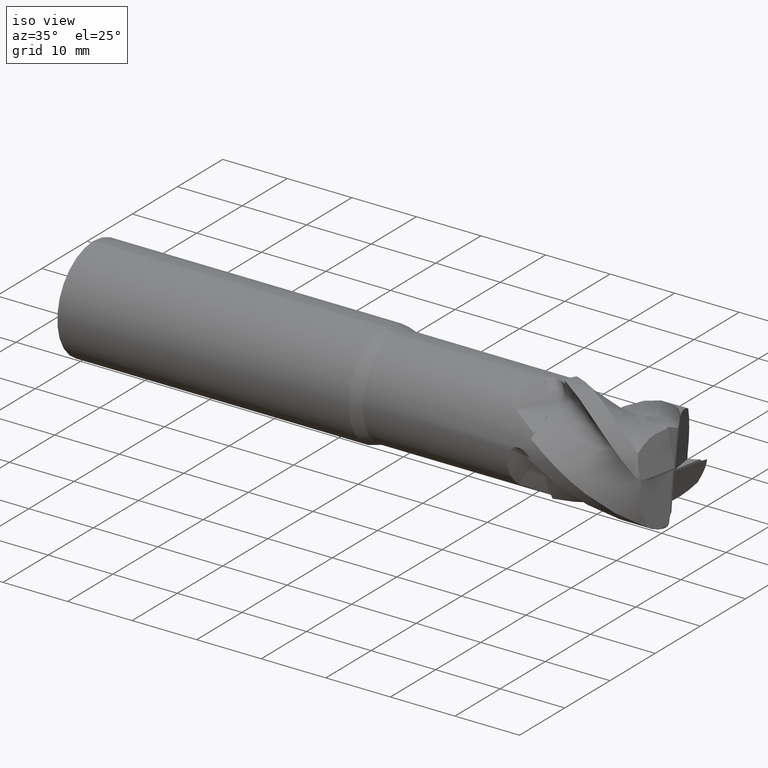
[diagram: clean part render]
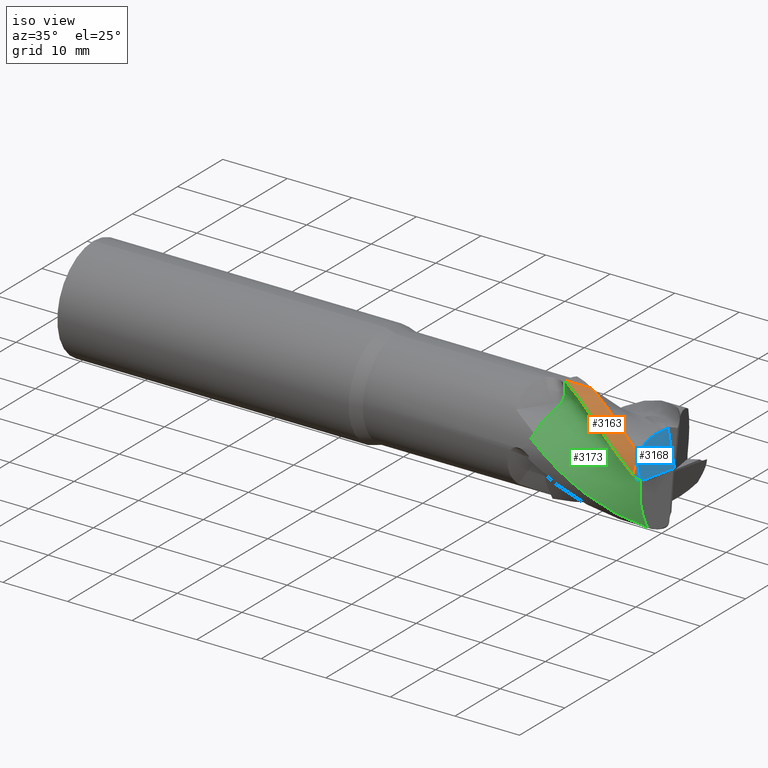
[diagram: same view with three faces highlighted in distinct colors, each labeled with its STEP entity id]
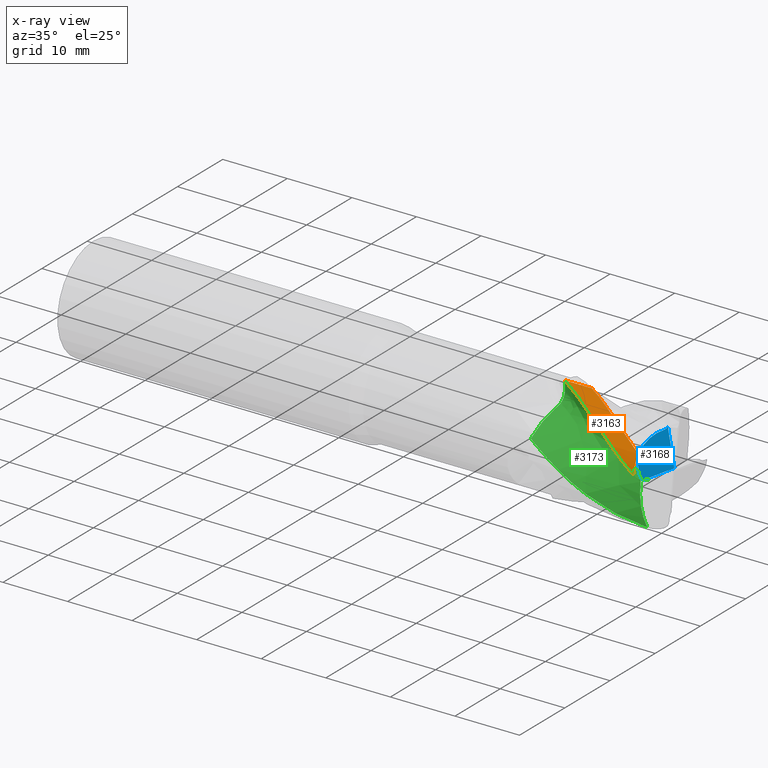
[diagram: x-ray of the same camera — body ghosted, the three highlighted faces saturated]
A machine part, iso view with three faces highlighted in distinct colors.
The next image is the same camera in x-ray (body ghosted, the three faces saturated) — at least one of them is partly hidden behind the body in this view.
Their STEP definitions:

[orange] entity #3163 — the highlighted cylindrical surface (partial cylindrical patch) has radius 8 mm, axis along (-1, -0, -0).
#81 =( BOUNDED_CURVE ( )  B_SPLINE_CURVE ( 3, ( #2317, #2238, #2237, #2236 ),
 .UNSPECIFIED., .F., .T. ) 
 B_SPLINE_CURVE_WITH_KNOTS ( ( 4, 4 ),
 ( 1.138046724006879500, 1.157835611299588500 ),
 .UNSPECIFIED. ) 
 CURVE ( )  GEOMETRIC_REPRESENTATION_ITEM ( )  RATIONAL_B_SPLINE_CURVE ( ( 1.000000000000000000, 0.9999673669278756900, 0.9999673669278756900, 1.000000000000000000 ) ) 
 REPRESENTATION_ITEM ( '' )  );
#114 = CYLINDRICAL_SURFACE ( 'NONE', #1915, 8.000000000000017800 ) ;
#116 = FACE_OUTER_BOUND ( 'NONE', #5304, .T. ) ;
#396 = CARTESIAN_POINT ( 'NONE',  ( 29.18537270988267800, 2.344587197999903300E-014, 8.000000000000017800 ) ) ;
#491 = B_SPLINE_CURVE_WITH_KNOTS ( 'NONE', 3,
 ( #1212, #1234, #1235, #1236, #1237, #1238, #1239, #1240, #1241, #1242, #1243, #1244, #1245, #1246, #1247, #1248, #1249, #1250, #1251, #1252 ),
 .UNSPECIFIED., .F., .F.,
 ( 4, 2, 2, 2, 2, 2, 2, 2, 2, 4 ),
 ( 5.357508021462218400E-005, 0.001809958910828489200, 0.003566342741442356000, 0.005322726572056223400, 0.006200918487363165200, 0.007079110402670107800, 0.008835494233283973000, 0.01059187806389784100, 0.01234826189451170700, 0.01410464572512557700 ),
 .UNSPECIFIED. ) ;
#493 = B_SPLINE_CURVE_WITH_KNOTS ( 'NONE', 3,
 ( #1253, #1264, #1265, #1266, #1267, #1268, #1269, #1270, #1271, #1272, #1273, #1274, #1275, #1276 ),
 .UNSPECIFIED., .F., .F.,
 ( 4, 2, 2, 2, 2, 2, 4 ),
 ( 0.0000000000000000000, 0.004771799707058647100, 0.007157699560587970100, 0.009543599414117302800, 0.01431539912117598400, 0.01670129897470531300, 0.01908719882823464700 ),
 .UNSPECIFIED. ) ;
#720 = VECTOR ( 'NONE', #2201, 1000.000000000000000 ) ;
#754 = CIRCLE ( 'NONE', #1787, 8.000000000000017800 ) ;
#756 = LINE ( 'NONE', #2202, #720 ) ;
#804 = VERTEX_POINT ( 'NONE', #870 ) ;
#820 = VERTEX_POINT ( 'NONE', #866 ) ;
#821 = VERTEX_POINT ( 'NONE', #865 ) ;
#823 = VERTEX_POINT ( 'NONE', #863 ) ;
#863 = CARTESIAN_POINT ( 'NONE',  ( 40.99999999999999300, -7.745826522737519100, 2.000542796257128900 ) ) ;
#865 = CARTESIAN_POINT ( 'NONE',  ( 40.99999999999999300, -6.677091160638437600, 4.406410515660604200 ) ) ;
#866 = CARTESIAN_POINT ( 'NONE',  ( 24.99999999999999600, -5.384444748270631800E-014, 8.000000000000016000 ) ) ;
#870 = CARTESIAN_POINT ( 'NONE',  ( 40.95458504109765800, -6.588591558601290600, 4.537671349263713500 ) ) ;
#971 = VERTEX_POINT ( 'NONE', #396 ) ;
#1172 = CARTESIAN_POINT ( 'NONE',  ( 40.99999999999999300, 0.0000000000000000000, 0.0000000000000000000 ) ) ;
#1174 = DIRECTION ( 'NONE',  ( -1.000000000000000000, -0.0000000000000000000, -0.0000000000000000000 ) ) ;
#1175 = DIRECTION ( 'NONE',  ( 0.0000000000000000000, 0.0000000000000000000, 1.000000000000000000 ) ) ;
#1212 = CARTESIAN_POINT ( 'NONE',  ( 40.95458504109765800, -6.588591558601290600, 4.537671349263713500 ) ) ;
#1234 = CARTESIAN_POINT ( 'NONE',  ( 40.45828299641514300, -6.405476082166845900, 4.803550693408073600 ) ) ;
#1235 = CARTESIAN_POINT ( 'NONE',  ( 39.96029640156641000, -6.211333079223510200, 5.052071167037992100 ) ) ;
#1236 = CARTESIAN_POINT ( 'NONE',  ( 38.97812623585831200, -5.784353824557311600, 5.535822660653246400 ) ) ;
#1237 = CARTESIAN_POINT ( 'NONE',  ( 38.49141873886646400, -5.553621395448155700, 5.767492480126787100 ) ) ;
#1238 = CARTESIAN_POINT ( 'NONE',  ( 37.51922264393903800, -5.064978030777936600, 6.201022307655035700 ) ) ;
#1239 = CARTESIAN_POINT ( 'NONE',  ( 37.03369795498403500, -4.807101273905596300, 6.402836327160737400 ) ) ;
#1240 = CARTESIAN_POINT ( 'NONE',  ( 36.30027075180688500, -4.407820084824361800, 6.678117700543894300 ) ) ;
#1241 = CARTESIAN_POINT ( 'NONE',  ( 36.05493818023531100, -4.272670415029439900, 6.765330733325503900 ) ) ;
#1242 = CARTESIAN_POINT ( 'NONE',  ( 35.56160492692750100, -3.999765790144869500, 6.930172150151338300 ) ) ;
#1243 = CARTESIAN_POINT ( 'NONE',  ( 35.31323277830738800, -3.862568927332655100, 7.007575828523768800 ) ) ;
#1244 = CARTESIAN_POINT ( 'NONE',  ( 34.57080866319534400, -3.438003918877306400, 7.230654181842656000 ) ) ;
#1245 = CARTESIAN_POINT ( 'NONE',  ( 34.07543872389867800, -3.139559782571373700, 7.365442483917491700 ) ) ;
#1246 = CARTESIAN_POINT ( 'NONE',  ( 33.09313789021334200, -2.528982427132340200, 7.596764212182193900 ) ) ;
#1247 = CARTESIAN_POINT ( 'NONE',  ( 32.60537362341768400, -2.216541003358921900, 7.693613885853031000 ) ) ;
#1248 = CARTESIAN_POINT ( 'NONE',  ( 31.62969223439504400, -1.587806918474680800, 7.847523038118835000 ) ) ;
#1249 = CARTESIAN_POINT ( 'NONE',  ( 31.14174437701741700, -1.271561634191678200, 7.904582425817103800 ) ) ;
#1250 = CARTESIAN_POINT ( 'NONE',  ( 30.15885485324572500, -0.6458898353831829000, 7.980107683273049100 ) ) ;
#1251 = CARTESIAN_POINT ( 'NONE',  ( 29.67145653512376300, -0.3249798156829383800, 8.000000000000019500 ) ) ;
#1252 = CARTESIAN_POINT ( 'NONE',  ( 29.18537270988267800, 2.344587197999903300E-014, 8.000000000000017800 ) ) ;
#1253 = CARTESIAN_POINT ( 'NONE',  ( 24.99999999999999600, -5.384444748270631800E-014, 8.000000000000016000 ) ) ;
#1264 = CARTESIAN_POINT ( 'NONE',  ( 26.34379014982030000, -0.8855962627879695500, 8.000000000000016000 ) ) ;
#1265 = CARTESIAN_POINT ( 'NONE',  ( 27.66898196080640600, -1.758816956987812000, 7.853224666014974700 ) ) ;
#1266 = CARTESIAN_POINT ( 'NONE',  ( 29.66201325733079500, -3.001550431632826300, 7.428481587251758900 ) ) ;
#1267 = CARTESIAN_POINT ( 'NONE',  ( 30.32720734910118000, -3.404638826595658000, 7.252765827094352200 ) ) ;
#1268 = CARTESIAN_POINT ( 'NONE',  ( 31.66456511648695800, -4.180618592958878400, 6.834954708148174500 ) ) ;
#1269 = CARTESIAN_POINT ( 'NONE',  ( 32.33780543952636300, -4.553828963209382700, 6.592095557604603900 ) ) ;
#1270 = CARTESIAN_POINT ( 'NONE',  ( 34.33784855928656300, -5.595710114879802100, 5.784492767499225300 ) ) ;
#1271 = CARTESIAN_POINT ( 'NONE',  ( 35.65775827175506400, -6.194429172402951900, 5.137581406851557700 ) ) ;
#1272 = CARTESIAN_POINT ( 'NONE',  ( 37.64917986813893700, -6.917536023776276200, 4.042167640108902800 ) ) ;
#1273 = CARTESIAN_POINT ( 'NONE',  ( 38.31493670163688100, -7.129344742717846900, 3.656180945674448100 ) ) ;
#1274 = CARTESIAN_POINT ( 'NONE',  ( 39.65595818606878700, -7.488610910635895100, 2.848845765768399700 ) ) ;
#1275 = CARTESIAN_POINT ( 'NONE',  ( 40.32811515339459900, -7.635093839465055200, 2.429284514070172200 ) ) ;
#1276 = CARTESIAN_POINT ( 'NONE',  ( 40.99999999999999300, -7.745826522737519100, 2.000542796257128900 ) ) ;
#1530 = DIRECTION ( 'NONE',  ( 0.0000000000000000000, 0.0000000000000000000, 1.000000000000000000 ) ) ;
#1531 = DIRECTION ( 'NONE',  ( -1.000000000000000000, -0.0000000000000000000, -0.0000000000000000000 ) ) ;
#1532 = CARTESIAN_POINT ( 'NONE',  ( -39.76065438357068200, 0.0000000000000000000, 0.0000000000000000000 ) ) ;
#1787 = AXIS2_PLACEMENT_3D ( 'NONE', #1172, #1174, #1175 ) ;
#1809 = EDGE_CURVE ( 'NONE', #804, #821, #81, .T. ) ;
#1815 = EDGE_CURVE ( 'NONE', #971, #820, #756, .T. ) ;
#1899 = EDGE_CURVE ( 'NONE', #823, #821, #754, .T. ) ;
#1915 = AXIS2_PLACEMENT_3D ( 'NONE', #1532, #1531, #1530 ) ;
#1920 = EDGE_CURVE ( 'NONE', #804, #971, #491, .T. ) ;
#1922 = EDGE_CURVE ( 'NONE', #820, #823, #493, .T. ) ;
#2004 = ORIENTED_EDGE ( 'NONE', *, *, #1899, .T. ) ;
#2043 = ORIENTED_EDGE ( 'NONE', *, *, #1815, .T. ) ;
#2078 = ORIENTED_EDGE ( 'NONE', *, *, #1809, .F. ) ;
#2079 = ORIENTED_EDGE ( 'NONE', *, *, #1920, .T. ) ;
#2080 = ORIENTED_EDGE ( 'NONE', *, *, #1922, .T. ) ;
#2201 = DIRECTION ( 'NONE',  ( -1.000000000000000000, -0.0000000000000000000, -0.0000000000000000000 ) ) ;
#2202 = CARTESIAN_POINT ( 'NONE',  ( -39.76065438357068200, 0.0000000000000000000, 8.000000000000017800 ) ) ;
#2236 = CARTESIAN_POINT ( 'NONE',  ( 40.99999999999999300, -6.677091160638437600, 4.406410515660604200 ) ) ;
#2237 = CARTESIAN_POINT ( 'NONE',  ( 40.98479452269423700, -6.648024699348343200, 4.450455302468674800 ) ) ;
#2238 = CARTESIAN_POINT ( 'NONE',  ( 40.96965570903413600, -6.618523869299901100, 4.494210341531051300 ) ) ;
#2317 = CARTESIAN_POINT ( 'NONE',  ( 40.95458504109765800, -6.588591558601290600, 4.537671349263713500 ) ) ;
#3163 = ADVANCED_FACE ( 'NONE', ( #116 ), #114, .T. ) ;
#5304 = EDGE_LOOP ( 'NONE', ( #2079, #2043, #2080, #2004, #2078 ) ) ;

[blue] entity #3168 — the highlighted planar face has unit normal (0.9539, 0.0509, 0.2957).
#44 = B_SPLINE_CURVE_WITH_KNOTS ( 'NONE', 3,
 ( #977, #635, #633, #628, #602, #624, #594, #640, #601, #604, #625, #595, #650, #610 ),
 .UNSPECIFIED., .F., .F.,
 ( 4, 2, 2, 2, 2, 2, 4 ),
 ( 0.003240335425446805000, 0.003710400609898095600, 0.004180465794349386100, 0.005120596163251968200, 0.007000856901057131400, 0.008881117638862295500, 0.01076137837666746000 ),
 .UNSPECIFIED. ) ;
#52 = B_SPLINE_CURVE_WITH_KNOTS ( 'NONE', 3,
 ( #2274, #2265, #2264, #2263, #2261, #2260, #2259, #2258, #2257, #2256, #2255, #2254, #2252, #2251 ),
 .UNSPECIFIED., .F., .F.,
 ( 4, 2, 2, 2, 2, 2, 4 ),
 ( 7.118998652927725500E-007, 0.0009051794912638519600, 0.001809647082662411200, 0.002714114674060970300, 0.003166348469760249600, 0.003392465367609886900, 0.003618582265459524100 ),
 .UNSPECIFIED. ) ;
#81 =( BOUNDED_CURVE ( )  B_SPLINE_CURVE ( 3, ( #2317, #2238, #2237, #2236 ),
 .UNSPECIFIED., .F., .T. ) 
 B_SPLINE_CURVE_WITH_KNOTS ( ( 4, 4 ),
 ( 1.138046724006879500, 1.157835611299588500 ),
 .UNSPECIFIED. ) 
 CURVE ( )  GEOMETRIC_REPRESENTATION_ITEM ( )  RATIONAL_B_SPLINE_CURVE ( ( 1.000000000000000000, 0.9999673669278756900, 0.9999673669278756900, 1.000000000000000000 ) ) 
 REPRESENTATION_ITEM ( '' )  );
#148 = FACE_OUTER_BOUND ( 'NONE', #5310, .T. ) ;
#305 = CARTESIAN_POINT ( 'NONE',  ( 42.00000000000052600, -6.893202197395991600, 1.218098298914151800 ) ) ;
#306 = CARTESIAN_POINT ( 'NONE',  ( 41.94083074469926900, 0.03727767853154134000, 0.2166918294281214300 ) ) ;
#311 = DIRECTION ( 'NONE',  ( 0.3000860501352342600, -0.1617266408334576700, -0.9401025774663951400 ) ) ;
#312 = CARTESIAN_POINT ( 'NONE',  ( 31.01100922619370700, 5.927732494077127400, 34.45738171209419700 ) ) ;
#387 = CARTESIAN_POINT ( 'NONE',  ( 40.33825437603707800, 0.9009609209415648800, 5.237205692325485300 ) ) ;
#494 = B_SPLINE_CURVE_WITH_KNOTS ( 'NONE', 3,
 ( #1233, #1254, #1255, #1256, #1257, #1258, #1259, #1260, #1261, #1262 ),
 .UNSPECIFIED., .F., .F.,
 ( 4, 2, 2, 2, 4 ),
 ( 2.293049316057527200E-005, 0.003505383717229703100, 0.005246610329264267400, 0.006117223635281550200, 0.006987836941298832200 ),
 .UNSPECIFIED. ) ;
#519 = B_SPLINE_CURVE_WITH_KNOTS ( 'NONE', 3,
 ( #1056, #1082, #1083, #1084 ),
 .UNSPECIFIED., .F., .F.,
 ( 4, 4 ),
 ( 0.006987836941298832200, 0.007025634893577364200 ),
 .UNSPECIFIED. ) ;
#594 = CARTESIAN_POINT ( 'NONE',  ( 40.40305150496089900, -0.6790593170190409900, 5.300015418912141600 ) ) ;
#595 = CARTESIAN_POINT ( 'NONE',  ( 40.75667423695914900, -5.405790857295490200, 4.972552460979399000 ) ) ;
#601 = CARTESIAN_POINT ( 'NONE',  ( 40.45199421039026100, -2.274934778639495100, 5.416691017159351400 ) ) ;
#602 = CARTESIAN_POINT ( 'NONE',  ( 40.40225275938835400, 0.1102934509813236600, 5.166798741033679800 ) ) ;
#604 = CARTESIAN_POINT ( 'NONE',  ( 40.54208569226015900, -3.539756952340717100, 5.343690272390026600 ) ) ;
#610 = CARTESIAN_POINT ( 'NONE',  ( 40.95458504109765800, -6.588591558601290600, 4.537671349263713500 ) ) ;
#624 = CARTESIAN_POINT ( 'NONE',  ( 40.40044421340154900, -0.3624285527670005300, 5.253954953772007400 ) ) ;
#625 = CARTESIAN_POINT ( 'NONE',  ( 40.60310010451220100, -4.167535932388249300, 5.254886245414452300 ) ) ;
#628 = CARTESIAN_POINT ( 'NONE',  ( 40.39693739316173500, 0.2717654314542842800, 5.156165240290735400 ) ) ;
#633 = CARTESIAN_POINT ( 'NONE',  ( 40.37495507815526000, 0.5912605937281029100, 5.172105954349024900 ) ) ;
#635 = CARTESIAN_POINT ( 'NONE',  ( 40.35894581821234800, 0.7476687134593714700, 5.196836640888768100 ) ) ;
#640 = CARTESIAN_POINT ( 'NONE',  ( 40.42278150962527400, -1.633582339166913800, 5.400583888659737000 ) ) ;
#650 = CARTESIAN_POINT ( 'NONE',  ( 40.84738126115842500, -6.007507891030377000, 4.783491753009598400 ) ) ;
#683 = LINE ( 'NONE', #312, #772 ) ;
#772 = VECTOR ( 'NONE', #311, 1000.000000000000100 ) ;
#804 = VERTEX_POINT ( 'NONE', #870 ) ;
#808 = VERTEX_POINT ( 'NONE', #868 ) ;
#821 = VERTEX_POINT ( 'NONE', #865 ) ;
#865 = CARTESIAN_POINT ( 'NONE',  ( 40.99999999999999300, -6.677091160638437600, 4.406410515660604200 ) ) ;
#868 = CARTESIAN_POINT ( 'NONE',  ( 41.94085815935454100, -7.245813697833056100E-016, 0.2230163142713965400 ) ) ;
#870 = CARTESIAN_POINT ( 'NONE',  ( 40.95458504109765800, -6.588591558601290600, 4.537671349263713500 ) ) ;
#953 = VERTEX_POINT ( 'NONE', #387 ) ;
#966 = VERTEX_POINT ( 'NONE', #306 ) ;
#968 = VERTEX_POINT ( 'NONE', #305 ) ;
#977 = CARTESIAN_POINT ( 'NONE',  ( 40.33825437603707800, 0.9009609209415648800, 5.237205692325485300 ) ) ;
#1056 = CARTESIAN_POINT ( 'NONE',  ( 41.94085815935454100, -7.245813697833056100E-016, 0.2230163142713965400 ) ) ;
#1082 = CARTESIAN_POINT ( 'NONE',  ( 41.94084000927696100, 0.01242995569816567400, 0.2209365213821136200 ) ) ;
#1083 = CARTESIAN_POINT ( 'NONE',  ( 41.94083074469902100, 0.02485632783842541300, 0.2188286848852797900 ) ) ;
#1084 = CARTESIAN_POINT ( 'NONE',  ( 41.94083074469926900, 0.03727767853154134000, 0.2166918294281214300 ) ) ;
#1233 = CARTESIAN_POINT ( 'NONE',  ( 42.00000000000052600, -6.893202197395991600, 1.218098298914151800 ) ) ;
#1254 = CARTESIAN_POINT ( 'NONE',  ( 41.98987535277850500, -5.744215691593298700, 1.053094127548035400 ) ) ;
#1255 = CARTESIAN_POINT ( 'NONE',  ( 41.97975077762134800, -4.595229217955866500, 0.8880897292708898000 ) ) ;
#1256 = CARTESIAN_POINT ( 'NONE',  ( 41.96458712760101400, -2.871759868210042000, 0.6405100418358755700 ) ) ;
#1257 = CARTESIAN_POINT ( 'NONE',  ( 41.95953291188843800, -2.297270234169551900, 0.5579824267632824700 ) ) ;
#1258 = CARTESIAN_POINT ( 'NONE',  ( 41.95199606515125600, -1.435555634796150900, 0.4340509596820916700 ) ) ;
#1259 = CARTESIAN_POINT ( 'NONE',  ( 41.94948536772881900, -1.148318142371424800, 0.3927354805121954200 ) ) ;
#1260 = CARTESIAN_POINT ( 'NONE',  ( 41.94457026183909700, -0.5738905982911729500, 0.3097698494881047600 ) ) ;
#1261 = CARTESIAN_POINT ( 'NONE',  ( 41.94127621636798200, -0.2863034680895887900, 0.2709209031187095900 ) ) ;
#1262 = CARTESIAN_POINT ( 'NONE',  ( 41.94085815935454100, -7.245813697833056100E-016, 0.2230163142713965400 ) ) ;
#1522 = CARTESIAN_POINT ( 'NONE',  ( 31.01100922619370700, 5.927732494077127400, 34.45738171209419700 ) ) ;
#1546 = PLANE ( 'NONE',  #1949 ) ;
#1548 = DIRECTION ( 'NONE',  ( 0.9539121356363141600, 0.05087670765083460900, 0.2957417760553585100 ) ) ;
#1549 = DIRECTION ( 'NONE',  ( 0.2961252755449754700, 0.0000000000000000000, -0.9551491093978009600 ) ) ;
#1731 = EDGE_CURVE ( 'NONE', #953, #966, #683, .T. ) ;
#1809 = EDGE_CURVE ( 'NONE', #804, #821, #81, .T. ) ;
#1830 = EDGE_CURVE ( 'NONE', #821, #968, #52, .T. ) ;
#1843 = EDGE_CURVE ( 'NONE', #953, #804, #44, .T. ) ;
#1880 = EDGE_CURVE ( 'NONE', #808, #966, #519, .T. ) ;
#1921 = EDGE_CURVE ( 'NONE', #968, #808, #494, .T. ) ;
#1949 = AXIS2_PLACEMENT_3D ( 'NONE', #1522, #1548, #1549 ) ;
#1999 = ORIENTED_EDGE ( 'NONE', *, *, #1880, .T. ) ;
#2024 = ORIENTED_EDGE ( 'NONE', *, *, #1830, .T. ) ;
#2045 = ORIENTED_EDGE ( 'NONE', *, *, #1731, .F. ) ;
#2050 = ORIENTED_EDGE ( 'NONE', *, *, #1921, .T. ) ;
#2104 = ORIENTED_EDGE ( 'NONE', *, *, #1809, .T. ) ;
#2118 = ORIENTED_EDGE ( 'NONE', *, *, #1843, .T. ) ;
#2236 = CARTESIAN_POINT ( 'NONE',  ( 40.99999999999999300, -6.677091160638437600, 4.406410515660604200 ) ) ;
#2237 = CARTESIAN_POINT ( 'NONE',  ( 40.98479452269423700, -6.648024699348343200, 4.450455302468674800 ) ) ;
#2238 = CARTESIAN_POINT ( 'NONE',  ( 40.96965570903413600, -6.618523869299901100, 4.494210341531051300 ) ) ;
#2251 = CARTESIAN_POINT ( 'NONE',  ( 42.00000000000052600, -6.893202197395991600, 1.218098298914151800 ) ) ;
#2252 = CARTESIAN_POINT ( 'NONE',  ( 41.99999999999997900, -6.969387674975892300, 1.231204551004343700 ) ) ;
#2254 = CARTESIAN_POINT ( 'NONE',  ( 41.99037332466905100, -7.038382468699802000, 1.274124528503086700 ) ) ;
#2255 = CARTESIAN_POINT ( 'NONE',  ( 41.96264252249403600, -7.146018640371640800, 1.382086694654784100 ) ) ;
#2256 = CARTESIAN_POINT ( 'NONE',  ( 41.94494449662603600, -7.187125899057799700, 1.446243216225205200 ) ) ;
#2257 = CARTESIAN_POINT ( 'NONE',  ( 41.88888249165827900, -7.286443227219674400, 1.644156295456316900 ) ) ;
#2258 = CARTESIAN_POINT ( 'NONE',  ( 41.84578781538949200, -7.324174206665152700, 1.789648634275239800 ) ) ;
#2259 = CARTESIAN_POINT ( 'NONE',  ( 41.71535169111536600, -7.391669421439780200, 2.221980305119219100 ) ) ;
#2260 = CARTESIAN_POINT ( 'NONE',  ( 41.62289618172859200, -7.377224319787914400, 2.517709621292553400 ) ) ;
#2261 = CARTESIAN_POINT ( 'NONE',  ( 41.43933442429212000, -7.280175176419684900, 3.093090784657923200 ) ) ;
#2263 = CARTESIAN_POINT ( 'NONE',  ( 41.34815623467291300, -7.195921273209787500, 3.372690851594645900 ) ) ;
#2264 = CARTESIAN_POINT ( 'NONE',  ( 41.17122787697272200, -6.975772806250091700, 3.905499169908260200 ) ) ;
#2265 = CARTESIAN_POINT ( 'NONE',  ( 41.08470134437843800, -6.839004417163662800, 4.161061252333357900 ) ) ;
#2274 = CARTESIAN_POINT ( 'NONE',  ( 40.99999999999999300, -6.677091160638437600, 4.406410515660604200 ) ) ;
#2317 = CARTESIAN_POINT ( 'NONE',  ( 40.95458504109765800, -6.588591558601290600, 4.537671349263713500 ) ) ;
#3168 = ADVANCED_FACE ( 'NONE', ( #148 ), #1546, .T. ) ;
#5310 = EDGE_LOOP ( 'NONE', ( #2050, #1999, #2045, #2118, #2104, #2024 ) ) ;

[green] entity #3173 — the highlighted face is a freeform B-spline surface patch.
#22 = B_SPLINE_CURVE_WITH_KNOTS ( 'NONE', 3,
 ( #392, #2295, #2301, #2316, #2294, #2332, #2293, #2340, #2297, #2335, #2334, #2341, #2246, #2327, #2287, #2275, #2227, #2271, #2226, #2229, #2206, #2243, #2241, #2205, #2182, #2184 ),
 .UNSPECIFIED., .F., .F.,
 ( 4, 2, 2, 2, 2, 2, 2, 2, 2, 2, 2, 2, 4 ),
 ( 5.357508023685212300E-005, 0.001243000614522785900, 0.002432426148808719800, 0.004811277217380572000, 0.006000702751666497400, 0.007190128285952422800, 0.009568979354524272800, 0.01194783042309612500, 0.01313725595738204600, 0.01432668149166796800, 0.01670553256023980800, 0.01789495809452572700, 0.01908438362881164200 ),
 .UNSPECIFIED. ) ;
#23 = B_SPLINE_CURVE_WITH_KNOTS ( 'NONE', 3,
 ( #221, #216, #215, #214 ),
 .UNSPECIFIED., .F., .F.,
 ( 4, 4 ),
 ( 0.0000000000000000000, 1.000000000000000000 ),
 .UNSPECIFIED. ) ;
#33 = B_SPLINE_CURVE_WITH_KNOTS ( 'NONE', 3,
 ( #380, #412, #411, #410, #409, #408 ),
 .UNSPECIFIED., .F., .F.,
 ( 4, 2, 4 ),
 ( 0.002925791194229321100, 0.003807155817212967000, 0.004688520440196613400 ),
 .UNSPECIFIED. ) ;
#39 = B_SPLINE_CURVE_WITH_KNOTS ( 'NONE', 3,
 ( #2183, #2336, #2323, #2333, #2331, #2315, #2326, #2223, #2325, #2330 ),
 .UNSPECIFIED., .F., .F.,
 ( 4, 2, 2, 2, 4 ),
 ( 0.0000000000000000000, 0.0004267208506471083700, 0.0008534417012942167400, 0.001280162551941325200, 0.001706883402588433500 ),
 .UNSPECIFIED. ) ;
#55 = B_SPLINE_CURVE_WITH_KNOTS ( 'NONE', 3,
 ( #2320, #2319, #2324, #2308, #2309, #2310, #2328, #2285, #2290, #2281, #2318, #2322, #2289, #2283 ),
 .UNSPECIFIED., .F., .F.,
 ( 4, 2, 2, 2, 2, 2, 4 ),
 ( 0.003240335425447020100, 0.003710400609874806900, 0.004180465794302593700, 0.005120596163158167400, 0.007000856900869314700, 0.008881117638580462000, 0.01076137837629160900 ),
 .UNSPECIFIED. ) ;
#132 = FACE_OUTER_BOUND ( 'NONE', #5273, .T. ) ;
#211 = DIRECTION ( 'NONE',  ( -2.344220913482160100E-015, -8.643950460504394800E-015, 1.000000000000000000 ) ) ;
#212 = CARTESIAN_POINT ( 'NONE',  ( 24.99999999999999600, -5.547548290119454700E-014, 8.000000000000016000 ) ) ;
#214 = CARTESIAN_POINT ( 'NONE',  ( 24.99999999999999600, -4.911175009507278300E-014, 7.506457500000015800 ) ) ;
#215 = CARTESIAN_POINT ( 'NONE',  ( 24.99999999999999300, -4.915049848600953200E-014, 7.178253333333347400 ) ) ;
#216 = CARTESIAN_POINT ( 'NONE',  ( 24.99999999999999300, -4.625929269271485800E-014, 6.849126666666679200 ) ) ;
#221 = CARTESIAN_POINT ( 'NONE',  ( 24.99999999999999600, -4.285041609349998100E-014, 6.520000000000009300 ) ) ;
#380 = CARTESIAN_POINT ( 'NONE',  ( 41.98837996745682900, -5.628964541496490200, 0.6681168625471334300 ) ) ;
#392 = CARTESIAN_POINT ( 'NONE',  ( 40.95458504108133700, -4.537671349309757600, -6.588591558563085600 ) ) ;
#408 = CARTESIAN_POINT ( 'NONE',  ( 40.33825437603768900, -5.237205692323590800, 0.9009609209412203800 ) ) ;
#409 = CARTESIAN_POINT ( 'NONE',  ( 40.61703040172431400, -5.280499297353863100, 0.8589215799153212500 ) ) ;
#410 = CARTESIAN_POINT ( 'NONE',  ( 40.89464008022483200, -5.330631697443075200, 0.8178867774542788500 ) ) ;
#411 = CARTESIAN_POINT ( 'NONE',  ( 41.44573643300848400, -5.455071444161342600, 0.7393681878636005900 ) ) ;
#412 = CARTESIAN_POINT ( 'NONE',  ( 41.71978812319898100, -5.528632337841652400, 0.7017007250634661500 ) ) ;
#419 = CARTESIAN_POINT ( 'NONE',  ( 24.99999999999999600, -4.285041609349998100E-014, 6.520000000000009300 ) ) ;
#493 = B_SPLINE_CURVE_WITH_KNOTS ( 'NONE', 3,
 ( #1253, #1264, #1265, #1266, #1267, #1268, #1269, #1270, #1271, #1272, #1273, #1274, #1275, #1276 ),
 .UNSPECIFIED., .F., .F.,
 ( 4, 2, 2, 2, 2, 2, 4 ),
 ( 0.0000000000000000000, 0.004771799707058647100, 0.007157699560587970100, 0.009543599414117302800, 0.01431539912117598400, 0.01670129897470531300, 0.01908719882823464700 ),
 .UNSPECIFIED. ) ;
#510 = B_SPLINE_CURVE_WITH_KNOTS ( 'NONE', 3,
 ( #1173, #1177, #1178, #1179, #1180, #1181, #1182, #1183, #1184, #1185, #1186, #1187 ),
 .UNSPECIFIED., .F., .F.,
 ( 4, 2, 2, 2, 2, 4 ),
 ( 0.0000000000000000000, 0.0003511358010150016500, 0.0005267037015225024200, 0.0007022716020300032900, 0.001053407403045004600, 0.001404543204060005900 ),
 .UNSPECIFIED. ) ;
#517 = B_SPLINE_CURVE_WITH_KNOTS ( 'NONE', 3,
 ( #1107, #1114, #1115, #1116, #1117, #1118, #1119, #1120, #1121, #1122, #1123, #1124, #1125, #1126, #1127, #1128, #1129, #1130, #1131, #1132, #1133, #1134 ),
 .UNSPECIFIED., .F., .F.,
 ( 4, 2, 2, 2, 2, 2, 2, 2, 2, 2, 4 ),
 ( 0.0006889557811795628700, 0.002875303047860049300, 0.003968476681200293500, 0.005061650314540537700, 0.006154823947880783700, 0.006701410764550904900, 0.006974704172885965900, 0.007247997581221026100, 0.008341171214561269400, 0.008887758031231389800, 0.009434344847901511900 ),
 .UNSPECIFIED. ) ;
#709 = VECTOR ( 'NONE', #211, 1000.000000000000000 ) ;
#735 = LINE ( 'NONE', #212, #709 ) ;
#777 = VERTEX_POINT ( 'NONE', #890 ) ;
#788 = VERTEX_POINT ( 'NONE', #883 ) ;
#791 = VERTEX_POINT ( 'NONE', #880 ) ;
#797 = VERTEX_POINT ( 'NONE', #877 ) ;
#811 = CARTESIAN_POINT ( 'NONE',  ( 24.99999999999999600, -4.911175009507278300E-014, 7.506457500000015800 ) ) ;
#820 = VERTEX_POINT ( 'NONE', #866 ) ;
#823 = VERTEX_POINT ( 'NONE', #863 ) ;
#847 = CARTESIAN_POINT ( 'NONE',  ( 40.33825437603768900, -5.237205692323590800, 0.9009609209412203800 ) ) ;
#863 = CARTESIAN_POINT ( 'NONE',  ( 40.99999999999999300, -7.745826522737519100, 2.000542796257128900 ) ) ;
#866 = CARTESIAN_POINT ( 'NONE',  ( 24.99999999999999600, -5.384444748270631800E-014, 8.000000000000016000 ) ) ;
#877 = CARTESIAN_POINT ( 'NONE',  ( 41.99999999999998600, -6.898865639379887500, 1.185602332059006100 ) ) ;
#880 = CARTESIAN_POINT ( 'NONE',  ( 40.95458504108133700, -4.537671349309757600, -6.588591558563085600 ) ) ;
#883 = CARTESIAN_POINT ( 'NONE',  ( 24.99999999999998900, -7.528066603737400400, 2.707067270995297200 ) ) ;
#890 = CARTESIAN_POINT ( 'NONE',  ( 41.98837996745682900, -5.628964541496490200, 0.6681168625471334300 ) ) ;
#911 = VERTEX_POINT ( 'NONE', #847 ) ;
#938 = VERTEX_POINT ( 'NONE', #811 ) ;
#955 = VERTEX_POINT ( 'NONE', #419 ) ;
#1107 = CARTESIAN_POINT ( 'NONE',  ( 24.99999999999998900, -7.528066603737400400, 2.707067270995297200 ) ) ;
#1114 = CARTESIAN_POINT ( 'NONE',  ( 24.99999999999999300, -6.919312838223167900, 3.116744819997546900 ) ) ;
#1115 = CARTESIAN_POINT ( 'NONE',  ( 24.99999999999998900, -6.285254468472095000, 3.477303475434281800 ) ) ;
#1116 = CARTESIAN_POINT ( 'NONE',  ( 24.99999999999998600, -5.294283707472545500, 3.940723967664155700 ) ) ;
#1117 = CARTESIAN_POINT ( 'NONE',  ( 24.99999999999999300, -4.957293317124460900, 4.082256499824643100 ) ) ;
#1118 = CARTESIAN_POINT ( 'NONE',  ( 24.99999999999999300, -4.269397531381272900, 4.338311078406582600 ) ) ;
#1119 = CARTESIAN_POINT ( 'NONE',  ( 24.99999999999996800, -3.917472363217636500, 4.453082337089227000 ) ) ;
#1120 = CARTESIAN_POINT ( 'NONE',  ( 24.99999999999996800, -3.205687404644677100, 4.652341353751094000 ) ) ;
#1121 = CARTESIAN_POINT ( 'NONE',  ( 25.00000000000000700, -2.845485477027788000, 4.736999099855908400 ) ) ;
#1122 = CARTESIAN_POINT ( 'NONE',  ( 25.00000000000001100, -2.301301704145538400, 4.840859812709378000 ) ) ;
#1123 = CARTESIAN_POINT ( 'NONE',  ( 25.00000000000000000, -2.119162010303062600, 4.871654531453411400 ) ) ;
#1124 = CARTESIAN_POINT ( 'NONE',  ( 25.00000000000000000, -1.844833132614229300, 4.912099692414557200 ) ) ;
#1125 = CARTESIAN_POINT ( 'NONE',  ( 24.99999999999998600, -1.753186234991984000, 4.924626109545982000 ) ) ;
#1126 = CARTESIAN_POINT ( 'NONE',  ( 24.99999999999998600, -1.569448555837494400, 4.947766321653482200 ) ) ;
#1127 = CARTESIAN_POINT ( 'NONE',  ( 24.99999999999997900, -1.477441295337022200, 4.958724675853414300 ) ) ;
#1128 = CARTESIAN_POINT ( 'NONE',  ( 24.99999999999997500, -1.027666590747450700, 5.058867622108554200 ) ) ;
#1129 = CARTESIAN_POINT ( 'NONE',  ( 25.00000000000000000, -0.6800678077122682700, 5.242255945634489000 ) ) ;
#1130 = CARTESIAN_POINT ( 'NONE',  ( 24.99999999999999300, -0.2952373027314512100, 5.648432458261373400 ) ) ;
#1131 = CARTESIAN_POINT ( 'NONE',  ( 25.00000000000000700, -0.1904006683924959500, 5.804514968501004000 ) ) ;
#1132 = CARTESIAN_POINT ( 'NONE',  ( 25.00000000000001100, -0.04192257787128814800, 6.148214747242145800 ) ) ;
#1133 = CARTESIAN_POINT ( 'NONE',  ( 25.00000000000000400, -4.122848167465581500E-014, 6.331293885177581500 ) ) ;
#1134 = CARTESIAN_POINT ( 'NONE',  ( 24.99999999999999600, -4.285041609349998100E-014, 6.520000000000009300 ) ) ;
#1173 = CARTESIAN_POINT ( 'NONE',  ( 41.99999999999998600, -6.898865639379887500, 1.185602332059006100 ) ) ;
#1177 = CARTESIAN_POINT ( 'NONE',  ( 41.99897828195930300, -6.783406474437941600, 1.166199728609400600 ) ) ;
#1178 = CARTESIAN_POINT ( 'NONE',  ( 41.99795656953735100, -6.667952651007082600, 1.146769607545471400 ) ) ;
#1179 = CARTESIAN_POINT ( 'NONE',  ( 41.99642400920090100, -6.494779920681533100, 1.117583187892428500 ) ) ;
#1180 = CARTESIAN_POINT ( 'NONE',  ( 41.99591291330484200, -6.436808491256393900, 1.109127797074550600 ) ) ;
#1181 = CARTESIAN_POINT ( 'NONE',  ( 41.99489202562974600, -6.322196146081901200, 1.085362674366620500 ) ) ;
#1182 = CARTESIAN_POINT ( 'NONE',  ( 41.99438082221652000, -6.265496671526091400, 1.069456292985189400 ) ) ;
#1183 = CARTESIAN_POINT ( 'NONE',  ( 41.99285977172608100, -6.098685216588754600, 1.010560004090404400 ) ) ;
#1184 = CARTESIAN_POINT ( 'NONE',  ( 41.99189083585169200, -5.994944282686157400, 0.9578320805428807100 ) ) ;
#1185 = CARTESIAN_POINT ( 'NONE',  ( 41.99004367626370300, -5.800366886501666200, 0.8291070675637762800 ) ) ;
#1186 = CARTESIAN_POINT ( 'NONE',  ( 41.98916401592784800, -5.709429334015383400, 0.7524430516150753000 ) ) ;
#1187 = CARTESIAN_POINT ( 'NONE',  ( 41.98837996745682900, -5.628964541496490200, 0.6681168625471334300 ) ) ;
#1253 = CARTESIAN_POINT ( 'NONE',  ( 24.99999999999999600, -5.384444748270631800E-014, 8.000000000000016000 ) ) ;
#1264 = CARTESIAN_POINT ( 'NONE',  ( 26.34379014982030000, -0.8855962627879695500, 8.000000000000016000 ) ) ;
#1265 = CARTESIAN_POINT ( 'NONE',  ( 27.66898196080640600, -1.758816956987812000, 7.853224666014974700 ) ) ;
#1266 = CARTESIAN_POINT ( 'NONE',  ( 29.66201325733079500, -3.001550431632826300, 7.428481587251758900 ) ) ;
#1267 = CARTESIAN_POINT ( 'NONE',  ( 30.32720734910118000, -3.404638826595658000, 7.252765827094352200 ) ) ;
#1268 = CARTESIAN_POINT ( 'NONE',  ( 31.66456511648695800, -4.180618592958878400, 6.834954708148174500 ) ) ;
#1269 = CARTESIAN_POINT ( 'NONE',  ( 32.33780543952636300, -4.553828963209382700, 6.592095557604603900 ) ) ;
#1270 = CARTESIAN_POINT ( 'NONE',  ( 34.33784855928656300, -5.595710114879802100, 5.784492767499225300 ) ) ;
#1271 = CARTESIAN_POINT ( 'NONE',  ( 35.65775827175506400, -6.194429172402951900, 5.137581406851557700 ) ) ;
#1272 = CARTESIAN_POINT ( 'NONE',  ( 37.64917986813893700, -6.917536023776276200, 4.042167640108902800 ) ) ;
#1273 = CARTESIAN_POINT ( 'NONE',  ( 38.31493670163688100, -7.129344742717846900, 3.656180945674448100 ) ) ;
#1274 = CARTESIAN_POINT ( 'NONE',  ( 39.65595818606878700, -7.488610910635895100, 2.848845765768399700 ) ) ;
#1275 = CARTESIAN_POINT ( 'NONE',  ( 40.32811515339459900, -7.635093839465055200, 2.429284514070172200 ) ) ;
#1276 = CARTESIAN_POINT ( 'NONE',  ( 40.99999999999999300, -7.745826522737519100, 2.000542796257128900 ) ) ;
#1794 = EDGE_CURVE ( 'NONE', #777, #911, #33, .T. ) ;
#1805 = EDGE_CURVE ( 'NONE', #791, #788, #22, .T. ) ;
#1825 = EDGE_CURVE ( 'NONE', #823, #797, #39, .T. ) ;
#1827 = EDGE_CURVE ( 'NONE', #911, #791, #55, .T. ) ;
#1865 = EDGE_CURVE ( 'NONE', #955, #938, #23, .T. ) ;
#1866 = EDGE_CURVE ( 'NONE', #938, #820, #735, .T. ) ;
#1884 = EDGE_CURVE ( 'NONE', #788, #955, #517, .T. ) ;
#1901 = EDGE_CURVE ( 'NONE', #797, #777, #510, .T. ) ;
#1922 = EDGE_CURVE ( 'NONE', #820, #823, #493, .T. ) ;
#1982 = ORIENTED_EDGE ( 'NONE', *, *, #1805, .F. ) ;
#1996 = ORIENTED_EDGE ( 'NONE', *, *, #1884, .F. ) ;
#1998 = ORIENTED_EDGE ( 'NONE', *, *, #1827, .F. ) ;
#2001 = ORIENTED_EDGE ( 'NONE', *, *, #1794, .F. ) ;
#2027 = ORIENTED_EDGE ( 'NONE', *, *, #1901, .F. ) ;
#2035 = ORIENTED_EDGE ( 'NONE', *, *, #1865, .F. ) ;
#2046 = ORIENTED_EDGE ( 'NONE', *, *, #1866, .F. ) ;
#2047 = ORIENTED_EDGE ( 'NONE', *, *, #1922, .F. ) ;
#2069 = ORIENTED_EDGE ( 'NONE', *, *, #1825, .F. ) ;
#2153 = B_SPLINE_SURFACE_WITH_KNOTS ( 'NONE', 3, 3, ( 
 ( #2839, #2838, #2387, #2840, #2841, #2842, #2843, #2844, #2845, #2846, #2847, #2848, #2849, #2850, #2851, #2852 ),
 ( #2853, #2854, #2855, #2856, #2857, #2858, #2859, #2860, #2861, #2862, #2863, #2864, #2865, #2866, #2867, #2868 ),
 ( #2869, #2870, #2871, #2872, #2873, #2874, #2875, #2876, #2877, #2878, #2879, #2880, #2881, #2882, #2883, #2884 ),
 ( #2885, #2886, #2887, #2888, #2889, #2890, #2891, #2892, #2893, #2894, #2895, #2896, #2897, #2898, #2899, #2900 ),
 ( #2901, #2902, #2903, #2904, #2905, #2906, #2907, #2908, #2909, #2910, #2911, #2912, #2913, #2914, #2915, #2916 ),
 ( #2917, #2918, #2919, #2920, #2921, #2922, #2923, #2924, #2925, #2926, #2927, #2928, #2929, #2930, #2931, #2932 ),
 ( #2933, #2934, #2935, #2936, #2937, #2938, #2939, #2940, #2941, #2942, #2943, #2944, #2945, #2946, #2947, #2948 ),
 ( #2949, #2950, #2951, #2952, #2953, #2954, #2955, #2956, #2957, #2958, #2959, #2960, #2961, #2962, #2963, #2964 ),
 ( #2965, #2966, #2967, #2968, #2969, #2970, #2971, #2972, #2973, #2974, #2975, #2976, #2977, #2978, #2979, #2980 ),
 ( #2981, #2982, #2983, #2984, #2985, #2986, #2987, #2988, #2989, #2990, #2991, #2992, #2993, #2994, #2995, #2996 ),
 ( #2997, #2998, #2999, #3000, #3001, #3002, #3003, #3004, #3005, #3006, #3007, #3008, #3009, #3010, #3011, #3012 ),
 ( #3013, #3014, #3015, #3016, #3017, #3018, #3019, #3020, #3021, #3022, #3023, #3024, #3025, #3026, #3027, #3028 ),
 ( #3029, #3030, #3031, #3032, #3033, #3034, #3035, #3036, #3037, #3038, #3039, #3040, #3041, #3042, #3043, #3044 ),
 ( #3045, #3046, #3047, #3048, #3049, #3050, #3051, #3052, #3053, #3054, #3055, #3056, #3057, #3058, #3059, #3060 ) ),
 .UNSPECIFIED., .F., .F., .F.,
 ( 4, 2, 2, 2, 2, 2, 4 ),
 ( 4, 2, 2, 2, 2, 2, 2, 4 ),
 ( 0.0000000000000000000, 0.5000000000000003300, 0.6259407578674413000, 0.6902152126381615500, 0.7544896674088817900, 0.8363264449392544500, 1.000000000000000000 ),
 ( 0.0000000000000000000, 0.1428570737831661400, 0.2857161845894563600, 0.4285694415899813900, 0.5714305584100183300, 0.7142838154105434200, 0.8571429262168337400, 1.000000000000000000 ),
 .UNSPECIFIED. ) ;
#2182 = CARTESIAN_POINT ( 'NONE',  ( 25.33639450635510900, -7.601982517599882500, 2.501514964041254200 ) ) ;
#2183 = CARTESIAN_POINT ( 'NONE',  ( 40.99999999999999300, -7.745826522737519100, 2.000542796257128900 ) ) ;
#2184 = CARTESIAN_POINT ( 'NONE',  ( 24.99999999999998900, -7.528066603737400400, 2.707067270995297200 ) ) ;
#2205 = CARTESIAN_POINT ( 'NONE',  ( 25.67506491012467900, -7.666234315150438400, 2.296885944676802600 ) ) ;
#2206 = CARTESIAN_POINT ( 'NONE',  ( 27.68573733586632800, -7.948191198449602100, 1.011063171179700900 ) ) ;
#2223 = CARTESIAN_POINT ( 'NONE',  ( 41.96815457701080700, -7.178849728793883500, 1.252842361725092300 ) ) ;
#2226 = CARTESIAN_POINT ( 'NONE',  ( 29.33011876357488000, -8.002451657668210300, -0.09720917863409821200 ) ) ;
#2227 = CARTESIAN_POINT ( 'NONE',  ( 30.32076287218766100, -7.967801541571000200, -0.7490791845846092000 ) ) ;
#2229 = CARTESIAN_POINT ( 'NONE',  ( 28.34295415541610200, -7.992241120307169500, 0.5646330718086692800 ) ) ;
#2241 = CARTESIAN_POINT ( 'NONE',  ( 26.34983989586464000, -7.779199437633906200, 1.879066184880206200 ) ) ;
#2243 = CARTESIAN_POINT ( 'NONE',  ( 26.68559653088553300, -7.828121930102734700, 1.664183001731444300 ) ) ;
#2246 = CARTESIAN_POINT ( 'NONE',  ( 33.63267961144116200, -7.480979759525201400, -2.868777764935291200 ) ) ;
#2271 = CARTESIAN_POINT ( 'NONE',  ( 29.65939457544809700, -7.996673292723115400, -0.3165395395333802700 ) ) ;
#2275 = CARTESIAN_POINT ( 'NONE',  ( 30.65407510667635500, -7.945048280511613800, -0.9604428447203392500 ) ) ;
#2281 = CARTESIAN_POINT ( 'NONE',  ( 40.54208569226219100, -5.343690272376695000, -3.539756952301787800 ) ) ;
#2283 = CARTESIAN_POINT ( 'NONE',  ( 40.95458504108133700, -4.537671349309757600, -6.588591558563085600 ) ) ;
#2285 = CARTESIAN_POINT ( 'NONE',  ( 40.42278150962610500, -5.400583888649844500, -1.633582339125029900 ) ) ;
#2287 = CARTESIAN_POINT ( 'NONE',  ( 31.64962486028695900, -7.850444285180113700, -1.598591591314745300 ) ) ;
#2289 = CARTESIAN_POINT ( 'NONE',  ( 40.84738126114854100, -4.783491753033579200, -6.007507890984604700 ) ) ;
#2290 = CARTESIAN_POINT ( 'NONE',  ( 40.45199421039219300, -5.416691017147976500, -2.274934778609743400 ) ) ;
#2293 = CARTESIAN_POINT ( 'NONE',  ( 37.63110863885424400, -6.158909505457684100, -5.124613682092261900 ) ) ;
#2294 = CARTESIAN_POINT ( 'NONE',  ( 39.27934701308809900, -5.388561326068143300, -5.917076666305650400 ) ) ;
#2295 = CARTESIAN_POINT ( 'NONE',  ( 40.61848861705414700, -4.717725205093040100, -6.464585507282641300 ) ) ;
#2297 = CARTESIAN_POINT ( 'NONE',  ( 36.31007556965715100, -6.676065149012502300, -4.413289012773294200 ) ) ;
#2301 = CARTESIAN_POINT ( 'NONE',  ( 40.28094247284511900, -4.888860455450339000, -6.336084764175086400 ) ) ;
#2308 = CARTESIAN_POINT ( 'NONE',  ( 40.39693739316054200, -5.156165240289325000, 0.2717654314851943300 ) ) ;
#2309 = CARTESIAN_POINT ( 'NONE',  ( 40.40225275938885800, -5.166798741027062800, 0.1102934510096670000 ) ) ;
#2310 = CARTESIAN_POINT ( 'NONE',  ( 40.40044421340217400, -5.253954953764387700, -0.3624285527347508300 ) ) ;
#2315 = CARTESIAN_POINT ( 'NONE',  ( 41.76803947306788700, -7.516861439336625300, 1.440296374238412700 ) ) ;
#2316 = CARTESIAN_POINT ( 'NONE',  ( 39.61154810158593900, -5.224584669753944000, -6.062230754454155600 ) ) ;
#2318 = CARTESIAN_POINT ( 'NONE',  ( 40.60310010450714900, -5.254886245413237200, -4.167535932286661200 ) ) ;
#2319 = CARTESIAN_POINT ( 'NONE',  ( 40.35894581821248300, -5.196836640887815100, 0.7476687134622093100 ) ) ;
#2320 = CARTESIAN_POINT ( 'NONE',  ( 40.33825437603768900, -5.237205692323590800, 0.9009609209412203800 ) ) ;
#2322 = CARTESIAN_POINT ( 'NONE',  ( 40.75667423695284700, -4.972552460989323500, -5.405790857234814300 ) ) ;
#2323 = CARTESIAN_POINT ( 'NONE',  ( 41.23830987178374800, -7.763492351768660700, 1.842845729745073800 ) ) ;
#2324 = CARTESIAN_POINT ( 'NONE',  ( 40.37495507815467700, -5.172105954349363300, 0.5912605937375280400 ) ) ;
#2325 = CARTESIAN_POINT ( 'NONE',  ( 42.00000000000093800, -7.042390158140040800, 1.210463024491775300 ) ) ;
#2326 = CARTESIAN_POINT ( 'NONE',  ( 41.85112147092004900, -7.418402964362119400, 1.368788798785190600 ) ) ;
#2327 = CARTESIAN_POINT ( 'NONE',  ( 32.30827213096161900, -7.751241440458961100, -2.028102600640453900 ) ) ;
#2328 = CARTESIAN_POINT ( 'NONE',  ( 40.40305150496162400, -5.300015418903898400, -0.6790593169842980000 ) ) ;
#2330 = CARTESIAN_POINT ( 'NONE',  ( 41.99999999999998600, -6.898865639379887500, 1.185602332059006100 ) ) ;
#2331 = CARTESIAN_POINT ( 'NONE',  ( 41.57632062606856500, -7.663527048934136900, 1.594537028021449000 ) ) ;
#2332 = CARTESIAN_POINT ( 'NONE',  ( 38.28698816077198300, -5.864084725898604400, -5.459493391004873100 ) ) ;
#2333 = CARTESIAN_POINT ( 'NONE',  ( 41.46726118704477700, -7.712559565638815500, 1.677583553632037600 ) ) ;
#2334 = CARTESIAN_POINT ( 'NONE',  ( 35.30700307741821600, -7.010478385567232400, -3.860089972544456400 ) ) ;
#2335 = CARTESIAN_POINT ( 'NONE',  ( 35.64348294903666000, -6.905206146014168500, -4.045379322779629300 ) ) ;
#2336 = CARTESIAN_POINT ( 'NONE',  ( 41.12096760625782100, -7.765763075403729200, 1.923351206703131300 ) ) ;
#2340 = CARTESIAN_POINT ( 'NONE',  ( 36.64111705438067200, -6.552770684240132800, -4.594524380340073900 ) ) ;
#2341 = CARTESIAN_POINT ( 'NONE',  ( 34.30174501483878700, -7.308937799142439600, -3.281438009598075700 ) ) ;
#2387 = CARTESIAN_POINT ( 'NONE',  ( 21.20118534388398100, -11.72967779489743000, 2.033816695140815900 ) ) ;
#2838 = CARTESIAN_POINT ( 'NONE',  ( 19.57215307839424400, -11.36794639505436200, 3.651257182097742900 ) ) ;
#2839 = CARTESIAN_POINT ( 'NONE',  ( 17.95646285666224900, -10.68777734191829000, 5.039999999999895200 ) ) ;
#2840 = CARTESIAN_POINT ( 'NONE',  ( 24.42354108331628400, -11.90894122983679900, -1.042367961966052200 ) ) ;
#2841 = CARTESIAN_POINT ( 'NONE',  ( 26.05771879737556800, -11.59406165754163400, -2.697850436848792100 ) ) ;
#2842 = CARTESIAN_POINT ( 'NONE',  ( 29.28229749851491100, -10.54180452495250700, -5.609706653467630300 ) ) ;
#2843 = CARTESIAN_POINT ( 'NONE',  ( 30.91501561198524300, -9.631080923298707600, -6.999725869605796900 ) ) ;
#2844 = CARTESIAN_POINT ( 'NONE',  ( 34.13832365003439400, -7.537119917755694200, -9.271946616361015400 ) ) ;
#2845 = CARTESIAN_POINT ( 'NONE',  ( 35.77245297800696700, -6.137109269702084400, -10.19750283524476600 ) ) ;
#2846 = CARTESIAN_POINT ( 'NONE',  ( 38.99644244328870000, -3.323647342145748400, -11.47331635810121100 ) ) ;
#2847 = CARTESIAN_POINT ( 'NONE',  ( 40.62868284883453600, -1.690983632532328400, -11.78955530530504000 ) ) ;
#2848 = CARTESIAN_POINT ( 'NONE',  ( 43.85231243071012100, 1.405247200457484500, -11.86454782092057800 ) ) ;
#2849 = CARTESIAN_POINT ( 'NONE',  ( 45.48757259111379600, 3.047586156460107400, -11.49843059332854300 ) ) ;
#2850 = CARTESIAN_POINT ( 'NONE',  ( 48.71115644818937800, 5.916503193625683100, -10.37751587213053700 ) ) ;
#2851 = CARTESIAN_POINT ( 'NONE',  ( 50.34246258586128400, 7.279794306785803700, -9.427749478506671100 ) ) ;
#2852 = CARTESIAN_POINT ( 'NONE',  ( 51.95308810071645700, 8.385054535906236900, -8.348642999610868600 ) ) ;
#2853 = CARTESIAN_POINT ( 'NONE',  ( 19.61506714757569400, -8.171031423086821700, 5.039999999999919200 ) ) ;
#2854 = CARTESIAN_POINT ( 'NONE',  ( 21.22941030924587800, -8.850586750211700600, 3.979033234403793100 ) ) ;
#2855 = CARTESIAN_POINT ( 'NONE',  ( 22.85946740496890700, -9.283513903298892700, 2.709958957662354600 ) ) ;
#2856 = CARTESIAN_POINT ( 'NONE',  ( 26.08195015577560500, -9.715116056715515900, 0.2334053113679009900 ) ) ;
#2857 = CARTESIAN_POINT ( 'NONE',  ( 27.71627235872871600, -9.604742902783085500, -1.121738060534935900 ) ) ;
#2858 = CARTESIAN_POINT ( 'NONE',  ( 30.94072520862928100, -9.022231660883511100, -3.576770996385937100 ) ) ;
#2859 = CARTESIAN_POINT ( 'NONE',  ( 32.57340110522607500, -8.412048951381187600, -4.773665104353844900 ) ) ;
#2860 = CARTESIAN_POINT ( 'NONE',  ( 35.79677361365595100, -6.926594074730127600, -6.808526215291164100 ) ) ;
#2861 = CARTESIAN_POINT ( 'NONE',  ( 37.43091945377955900, -5.883036067495476500, -7.672314938078284500 ) ) ;
#2862 = CARTESIAN_POINT ( 'NONE',  ( 40.65481296637151600, -3.722466810250020200, -8.966849090519387400 ) ) ;
#2863 = CARTESIAN_POINT ( 'NONE',  ( 42.28712361805249000, -2.437801844609740700, -9.363828956778924400 ) ) ;
#2864 = CARTESIAN_POINT ( 'NONE',  ( 45.51085079253187600, 0.06234244498997841600, -9.710905193434488300 ) ) ;
#2865 = CARTESIAN_POINT ( 'NONE',  ( 47.14600060986364800, 1.411045574166708900, -9.558807326832250000 ) ) ;
#2866 = CARTESIAN_POINT ( 'NONE',  ( 50.36942235210792500, 3.840536286573597500, -8.917618228255374600 ) ) ;
#2867 = CARTESIAN_POINT ( 'NONE',  ( 52.00172395755206600, 5.020052038066984000, -8.273087492505775100 ) ) ;
#2868 = CARTESIAN_POINT ( 'NONE',  ( 53.61168879934795900, 6.015092505340798600, -7.501706219226058200 ) ) ;
#2869 = CARTESIAN_POINT ( 'NONE',  ( 21.27367143848914600, -5.654285504255352800, 5.039999999999945000 ) ) ;
#2870 = CARTESIAN_POINT ( 'NONE',  ( 22.88649923684417000, -6.333156329766710600, 4.306419986153677800 ) ) ;
#2871 = CARTESIAN_POINT ( 'NONE',  ( 24.51774946605719700, -6.837350011703719600, 3.386101220183892500 ) ) ;
#2872 = CARTESIAN_POINT ( 'NONE',  ( 27.74035922823156100, -7.521290883590869400, 1.509178584701854800 ) ) ;
#2873 = CARTESIAN_POINT ( 'NONE',  ( 29.37482592009196100, -7.615424148027061700, 0.4543743157785019000 ) ) ;
#2874 = CARTESIAN_POINT ( 'NONE',  ( 32.59915291873356600, -7.502658796811995300, -1.543835339303822200 ) ) ;
#2875 = CARTESIAN_POINT ( 'NONE',  ( 34.23178659846016800, -7.193016979461987100, -2.547604339101892500 ) ) ;
#2876 = CARTESIAN_POINT ( 'NONE',  ( 37.45522357728423700, -6.316068231706243100, -4.345105814221311900 ) ) ;
#2877 = CARTESIAN_POINT ( 'NONE',  ( 39.08938592956560900, -5.628962865288869500, -5.147127040914324600 ) ) ;
#2878 = CARTESIAN_POINT ( 'NONE',  ( 42.31318348944088100, -4.121286278354291200, -6.460381822935044500 ) ) ;
#2879 = CARTESIAN_POINT ( 'NONE',  ( 43.94556438728389500, -3.184620056686312800, -6.938102608254493700 ) ) ;
#2880 = CARTESIAN_POINT ( 'NONE',  ( 47.16938915434019500, -1.280562310478368300, -7.557262565946716700 ) ) ;
#2881 = CARTESIAN_POINT ( 'NONE',  ( 48.80442862861349300, -0.2254950081271109900, -7.619184060331747300 ) ) ;
#2882 = CARTESIAN_POINT ( 'NONE',  ( 52.02768825602645800, 1.764569379521930800, -7.457720584384414800 ) ) ;
#2883 = CARTESIAN_POINT ( 'NONE',  ( 53.66084737373375900, 2.760119565757073600, -7.118785376573328000 ) ) ;
#2884 = CARTESIAN_POINT ( 'NONE',  ( 55.27028949797946200, 3.645130474775360300, -6.654769438841247700 ) ) ;
#2885 = CARTESIAN_POINT ( 'NONE',  ( 23.35004749220225400, -2.503617808669035500, 5.039999999999975200 ) ) ;
#2886 = CARTESIAN_POINT ( 'NONE',  ( 24.96101173953560300, -3.181645928198171300, 4.715509718608862100 ) ) ;
#2887 = CARTESIAN_POINT ( 'NONE',  ( 26.59372212621125400, -3.775042651359247000, 4.232551220640928600 ) ) ;
#2888 = CARTESIAN_POINT ( 'NONE',  ( 29.81649089156331600, -4.774881700600616300, 3.106295563858056900 ) ) ;
#2889 = CARTESIAN_POINT ( 'NONE',  ( 31.45113846639687700, -5.125032770043499200, 2.427480266407018300 ) ) ;
#2890 = CARTESIAN_POINT ( 'NONE',  ( 34.67530791421763300, -5.600333616468306600, 1.001159232474880100 ) ) ;
#2891 = CARTESIAN_POINT ( 'NONE',  ( 36.30788874340184700, -5.666933386729025000, 0.2391599858207831600 ) ) ;
#2892 = CARTESIAN_POINT ( 'NONE',  ( 39.53140643152264000, -5.551762213943654900, -1.261195348638864100 ) ) ;
#2893 = CARTESIAN_POINT ( 'NONE',  ( 41.16558945504632300, -5.310893319802659100, -1.985890988694092500 ) ) ;
#2894 = CARTESIAN_POINT ( 'NONE',  ( 44.38926689353279200, -4.620560998589432700, -3.322581780854923000 ) ) ;
#2895 = CARTESIAN_POINT ( 'NONE',  ( 46.02173573120395400, -4.119547972000583000, -3.901380630304815500 ) ) ;
#2896 = CARTESIAN_POINT ( 'NONE',  ( 49.24568267264711400, -2.961719951240225200, -4.861157169096944800 ) ) ;
#2897 = CARTESIAN_POINT ( 'NONE',  ( 50.88058401046163900, -2.274249912851311200, -5.191005545513596600 ) ) ;
#2898 = CARTESIAN_POINT ( 'NONE',  ( 54.10364068931708900, -0.8342952186927957700, -5.630101709154315500 ) ) ;
#2899 = CARTESIAN_POINT ( 'NONE',  ( 55.73735056763980100, -0.06942558764068244800, -5.674138595409036000 ) ) ;
#2900 = CARTESIAN_POINT ( 'NONE',  ( 57.34666105458119700, 0.6782188157169811700, -5.594504938481489600 ) ) ;
#2901 = CARTESIAN_POINT ( 'NONE',  ( 23.76781925500191400, -1.869696031914186400, 5.039999999999982300 ) ) ;
#2902 = CARTESIAN_POINT ( 'NONE',  ( 25.37845646904031900, -2.547574778534893900, 4.797713187213151500 ) ) ;
#2903 = CARTESIAN_POINT ( 'NONE',  ( 27.01141272527029700, -3.158899182607424200, 4.402858958577686700 ) ) ;
#2904 = CARTESIAN_POINT ( 'NONE',  ( 30.23421348244584600, -4.222297690737533100, 3.427639269679044500 ) ) ;
#2905 = CARTESIAN_POINT ( 'NONE',  ( 31.86889745136545900, -4.623960146815123000, 2.824473840721678700 ) ) ;
#2906 = CARTESIAN_POINT ( 'NONE',  ( 35.09303519957051500, -5.217581300196978400, 1.513218147171888800 ) ) ;
#2907 = CARTESIAN_POINT ( 'NONE',  ( 36.72560539511614100, -5.359881765912743600, 0.7998635454902456300 ) ) ;
#2908 = CARTESIAN_POINT ( 'NONE',  ( 39.94913932212604400, -5.397982039207475300, -0.6407052841250060500 ) ) ;
#2909 = CARTESIAN_POINT ( 'NONE',  ( 41.58332650476118200, -5.246896976523056600, -1.349842833640762600 ) ) ;
#2910 = CARTESIAN_POINT ( 'NONE',  ( 44.80697977453517900, -4.721016250720302800, -2.691249006356202200 ) ) ;
#2911 = CARTESIAN_POINT ( 'NONE',  ( 46.43946630591278800, -4.307657675235760500, -3.290385000880409200 ) ) ;
#2912 = CARTESIAN_POINT ( 'NONE',  ( 49.66343782912554200, -3.299972836536258800, -4.318694399734101600 ) ) ;
#2913 = CARTESIAN_POINT ( 'NONE',  ( 51.29831137356666200, -2.686464235280852500, -4.702450297193423400 ) ) ;
#2914 = CARTESIAN_POINT ( 'NONE',  ( 54.52132721868247200, -1.357192909856697900, -5.262380477797699500 ) ) ;
#2915 = CARTESIAN_POINT ( 'NONE',  ( 56.15504445074935100, -0.6387903452570252700, -5.383492851297368100 ) ) ;
#2916 = CARTESIAN_POINT ( 'NONE',  ( 57.76443191255144400, 0.08126918722403891900, -5.381177218506543600 ) ) ;
#2917 = CARTESIAN_POINT ( 'NONE',  ( 24.39880279075925200, -0.9122493117006819100, 5.039999999999991200 ) ) ;
#2918 = CARTESIAN_POINT ( 'NONE',  ( 26.00899902082013400, -1.589924745682641300, 4.921811981211636300 ) ) ;
#2919 = CARTESIAN_POINT ( 'NONE',  ( 27.64227367499717400, -2.228304013032287300, 4.660084047056013600 ) ) ;
#2920 = CARTESIAN_POINT ( 'NONE',  ( 30.86512275116341500, -3.387699847143823100, 3.912982238609683100 ) ) ;
#2921 = CARTESIAN_POINT ( 'NONE',  ( 32.49986168806138000, -3.867162766934752600, 3.424074942325643800 ) ) ;
#2922 = CARTESIAN_POINT ( 'NONE',  ( 35.72395155861257600, -4.639489549278262200, 2.286608723755267900 ) ) ;
#2923 = CARTESIAN_POINT ( 'NONE',  ( 37.35650569358080700, -4.896124914410580500, 1.646724789106515800 ) ) ;
#2924 = CARTESIAN_POINT ( 'NONE',  ( 40.58006414708712100, -5.165719433103221000, 0.2964547866878326500 ) ) ;
#2925 = CARTESIAN_POINT ( 'NONE',  ( 42.21425761144712400, -5.150239800156313700, -0.3891845280201877700 ) ) ;
#2926 = CARTESIAN_POINT ( 'NONE',  ( 45.43787437789604400, -4.872739310579651900, -1.737712597807775900 ) ) ;
#2927 = CARTESIAN_POINT ( 'NONE',  ( 47.07038763304900200, -4.591770045260824800, -2.367564894506750700 ) ) ;
#2928 = CARTESIAN_POINT ( 'NONE',  ( 50.29439628344343300, -3.810854663764007300, -3.499383219066240200 ) ) ;
#2929 = CARTESIAN_POINT ( 'NONE',  ( 51.92922785002794900, -3.309054064984590300, -3.964558593043378200 ) ) ;
#2930 = CARTESIAN_POINT ( 'NONE',  ( 55.15218202173328200, -2.146953883166196100, -4.706990996279377400 ) ) ;
#2931 = CARTESIAN_POINT ( 'NONE',  ( 56.78583541321472000, -1.498762565875239500, -4.944503501180773400 ) ) ;
#2932 = CARTESIAN_POINT ( 'NONE',  ( 58.39541408169542800, -0.8203364759527074200, -5.058976698962590400 ) ) ;
#2933 = CARTESIAN_POINT ( 'NONE',  ( 24.61070164128613400, -0.5907165807230516700, 5.199504182657469700 ) ) ;
#2934 = CARTESIAN_POINT ( 'NONE',  ( 26.22119249713821200, -1.289279721896229700, 5.122978940745429800 ) ) ;
#2935 = CARTESIAN_POINT ( 'NONE',  ( 27.85381186305218600, -1.958447011534858500, 4.901576100631452000 ) ) ;
#2936 = CARTESIAN_POINT ( 'NONE',  ( 31.07756972089886100, -3.188616653763237900, 4.214846142506216300 ) ) ;
#2937 = CARTESIAN_POINT ( 'NONE',  ( 32.71145892612414500, -3.712769656015193900, 3.751653682509882100 ) ) ;
#2938 = CARTESIAN_POINT ( 'NONE',  ( 35.93625122176244000, -4.574379298617637700, 2.642428628813503300 ) ) ;
#2939 = CARTESIAN_POINT ( 'NONE',  ( 37.56808728293075500, -4.881397758103333700, 2.008556030987420200 ) ) ;
#2940 = CARTESIAN_POINT ( 'NONE',  ( 40.79245445202467800, -5.243951636736083400, 0.6495493862356005500 ) ) ;
#2941 = CARTESIAN_POINT ( 'NONE',  ( 42.42581034435041000, -5.277826107538181200, -0.05025549292820002300 ) ) ;
#2942 = CARTESIAN_POINT ( 'NONE',  ( 45.65021532230274200, -5.082519084857746200, -1.443078459880627000 ) ) ;
#2943 = CARTESIAN_POINT ( 'NONE',  ( 47.28202487784188400, -4.840986082692704300, -2.104849573319720300 ) ) ;
#2944 = CARTESIAN_POINT ( 'NONE',  ( 50.50676451220453300, -4.118769706662793500, -3.309629386997739800 ) ) ;
#2945 = CARTESIAN_POINT ( 'NONE',  ( 52.14071377643497800, -3.641248975784373300, -3.820302247302463300 ) ) ;
#2946 = CARTESIAN_POINT ( 'NONE',  ( 55.36453977591390400, -2.504442122593464800, -4.652255624509403600 ) ) ;
#2947 = CARTESIAN_POINT ( 'NONE',  ( 56.99740681918017800, -1.860859111503511100, -4.940282559481457400 ) ) ;
#2948 = CARTESIAN_POINT ( 'NONE',  ( 58.60749514928197400, -1.176679461196488400, -5.101015988546018700 ) ) ;
#2949 = CARTESIAN_POINT ( 'NONE',  ( 24.91222862226049600, -0.1331832179178348600, 5.747459745030339700 ) ) ;
#2950 = CARTESIAN_POINT ( 'NONE',  ( 26.52402531289082400, -0.9036277963383507700, 5.730208408601829900 ) ) ;
#2951 = CARTESIAN_POINT ( 'NONE',  ( 28.15418268030321900, -1.660292310050451600, 5.557355468727837300 ) ) ;
#2952 = CARTESIAN_POINT ( 'NONE',  ( 31.38102988329308800, -3.068720292586466500, 4.923861207176765100 ) ) ;
#2953 = CARTESIAN_POINT ( 'NONE',  ( 33.01196279976345900, -3.693822019165416300, 4.471792144109042700 ) ) ;
#2954 = CARTESIAN_POINT ( 'NONE',  ( 36.23920054011922100, -4.741380497372022200, 3.342137614854942200 ) ) ;
#2955 = CARTESIAN_POINT ( 'NONE',  ( 37.86858060744628300, -5.144215018207211700, 2.679264126966968400 ) ) ;
#2956 = CARTESIAN_POINT ( 'NONE',  ( 41.09570943693064700, -5.669672907127936600, 1.229219256151339100 ) ) ;
#2957 = CARTESIAN_POINT ( 'NONE',  ( 42.72618371588688300, -5.781453689251349300, 0.4648701618477560900 ) ) ;
#2958 = CARTESIAN_POINT ( 'NONE',  ( 45.95332115964441000, -5.700654189593712400, -1.075309043628761800 ) ) ;
#2959 = CARTESIAN_POINT ( 'NONE',  ( 47.58269518794053700, -5.505129545143260500, -1.825974723973238200 ) ) ;
#2960 = CARTESIAN_POINT ( 'NONE',  ( 50.80992093034664900, -4.831313302879144600, -3.211451970132299700 ) ) ;
#2961 = CARTESIAN_POINT ( 'NONE',  ( 52.44086753031312000, -4.361709722156230200, -3.823401527351173400 ) ) ;
#2962 = CARTESIAN_POINT ( 'NONE',  ( 55.66773025835024700, -3.198819210591603600, -4.839555981079057800 ) ) ;
#2963 = CARTESIAN_POINT ( 'NONE',  ( 57.29794499726288800, -2.523620054533625800, -5.222459149073890700 ) ) ;
#2964 = CARTESIAN_POINT ( 'NONE',  ( 58.90964903647704200, -1.791536674562918400, -5.463182017177788700 ) ) ;
#2965 = CARTESIAN_POINT ( 'NONE',  ( 25.00000000000000000, -3.956535656059067300E-014, 6.132536906057264800 ) ) ;
#2966 = CARTESIAN_POINT ( 'NONE',  ( 26.61280122795865200, -0.8209955844845406900, 6.132536905411845900 ) ) ;
#2967 = CARTESIAN_POINT ( 'NONE',  ( 28.24116567626381200, -1.633830596839399400, 5.967604603603663600 ) ) ;
#2968 = CARTESIAN_POINT ( 'NONE',  ( 31.47017441902634600, -3.148645426524648200, 5.326646371788257300 ) ) ;
#2969 = CARTESIAN_POINT ( 'NONE',  ( 33.09901898275208500, -3.829384169612735100, 4.859917373347276900 ) ) ;
#2970 = CARTESIAN_POINT ( 'NONE',  ( 36.32798468410628300, -4.972463581342400300, 3.681718004951123100 ) ) ;
#2971 = CARTESIAN_POINT ( 'NONE',  ( 37.95564195497745200, -5.420141049896005600, 2.984010872809372800 ) ) ;
#2972 = CARTESIAN_POINT ( 'NONE',  ( 41.18470672344196300, -6.014540453520487200, 1.452225016430758000 ) ) ;
#2973 = CARTESIAN_POINT ( 'NONE',  ( 42.81315470554047000, -6.154393709186604300, 0.6378947239224134200 ) ) ;
#2974 = CARTESIAN_POINT ( 'NONE',  ( 46.04221957754356300, -6.105203147478301100, -1.004438427847225400 ) ) ;
#2975 = CARTESIAN_POINT ( 'NONE',  ( 47.66987677576377500, -5.915967285821334800, -1.811532460485167700 ) ) ;
#2976 = CARTESIAN_POINT ( 'NONE',  ( 50.89884233322872100, -5.231554131928827000, -3.303632945444214800 ) ) ;
#2977 = CARTESIAN_POINT ( 'NONE',  ( 52.52768706116948700, -4.745539080973779600, -3.970738068293715900 ) ) ;
#2978 = CARTESIAN_POINT ( 'NONE',  ( 55.75669599034382200, -3.531432201213775500, -5.080438345154441000 ) ) ;
#2979 = CARTESIAN_POINT ( 'NONE',  ( 57.38506113247378000, -2.820203387782354900, -5.507121076213874900 ) ) ;
#2980 = CARTESIAN_POINT ( 'NONE',  ( 58.99786124299395600, -2.046264714821906900, -5.781078598406684100 ) ) ;
#2981 = CARTESIAN_POINT ( 'NONE',  ( 25.00000000000000000, -4.693761917461932100E-014, 7.013333333333344300 ) ) ;
#2982 = CARTESIAN_POINT ( 'NONE',  ( 26.61524295724683500, -0.9366925992221673000, 7.013333332787940600 ) ) ;
#2983 = CARTESIAN_POINT ( 'NONE',  ( 28.23940139479097100, -1.869393884315930600, 6.824135548268355200 ) ) ;
#2984 = CARTESIAN_POINT ( 'NONE',  ( 31.47333890670409000, -3.597006245277103000, 6.093523952896182600 ) ) ;
#2985 = CARTESIAN_POINT ( 'NONE',  ( 33.09738924071184100, -4.380250929894378600, 5.556909126710372100 ) ) ;
#2986 = CARTESIAN_POINT ( 'NONE',  ( 36.33032258293929600, -5.684958492985969300, 4.212376922443444200 ) ) ;
#2987 = CARTESIAN_POINT ( 'NONE',  ( 37.95404436930396500, -6.198828111429524900, 3.411617594686215900 ) ) ;
#2988 = CARTESIAN_POINT ( 'NONE',  ( 41.18752945477753300, -6.877264023131732400, 1.664132973215479900 ) ) ;
#2989 = CARTESIAN_POINT ( 'NONE',  ( 42.81134063975476800, -7.038182213831502700, 0.7280029685500979400 ) ) ;
#2990 = CARTESIAN_POINT ( 'NONE',  ( 46.04482577995741400, -6.982263784207439100, -1.145723416044996100 ) ) ;
#2991 = CARTESIAN_POINT ( 'NONE',  ( 47.66854752792170300, -6.765289768772070100, -2.072114318394798100 ) ) ;
#2992 = CARTESIAN_POINT ( 'NONE',  ( 50.90148079413203400, -5.984486228981608300, -3.775163054412854300 ) ) ;
#2993 = CARTESIAN_POINT ( 'NONE',  ( 52.52553121490095800, -5.425390403041778800, -4.542521413965023000 ) ) ;
#2994 = CARTESIAN_POINT ( 'NONE',  ( 55.75946882530017500, -4.040945804717175300, -5.808124152004757500 ) ) ;
#2995 = CARTESIAN_POINT ( 'NONE',  ( 57.38362763229641700, -3.224962514906778200, -6.297919498413300200 ) ) ;
#2996 = CARTESIAN_POINT ( 'NONE',  ( 58.99886999627847900, -2.342044255570027800, -6.610726591228909900 ) ) ;
#2997 = CARTESIAN_POINT ( 'NONE',  ( 24.99999999999999600, -5.121113400734569100E-014, 7.506666666666680100 ) ) ;
#2998 = CARTESIAN_POINT ( 'NONE',  ( 26.61663047332803300, -1.001505113376582400, 7.506666666178420900 ) ) ;
#2999 = CARTESIAN_POINT ( 'NONE',  ( 28.23841322223046300, -2.001332682230298600, 7.303877805331107500 ) ) ;
#3000 = CARTESIAN_POINT ( 'NONE',  ( 31.47511133357470200, -3.848132760327738200, 6.523051436922119500 ) ) ;
#3001 = CARTESIAN_POINT ( 'NONE',  ( 33.09647642358054800, -4.688790936025522900, 5.947293617774468200 ) ) ;
#3002 = CARTESIAN_POINT ( 'NONE',  ( 36.33163203809076000, -6.084026289879085800, 4.509598532933359200 ) ) ;
#3003 = CARTESIAN_POINT ( 'NONE',  ( 37.95314956291085200, -6.634970075445791000, 3.651119757644994300 ) ) ;
#3004 = CARTESIAN_POINT ( 'NONE',  ( 41.18911046421889900, -7.360474764184520100, 1.782822440433260000 ) ) ;
#3005 = CARTESIAN_POINT ( 'NONE',  ( 42.81032458304724000, -7.533191407166696300, 0.7784725200904982800 ) ) ;
#3006 = CARTESIAN_POINT ( 'NONE',  ( 46.04628551171983000, -7.473504704417395700, -1.224857018338479700 ) ) ;
#3007 = CARTESIAN_POINT ( 'NONE',  ( 47.66780301733146500, -7.240994572531317200, -2.218065996430191900 ) ) ;
#3008 = CARTESIAN_POINT ( 'NONE',  ( 50.90295859384964000, -6.406202859192347900, -4.039266669301660800 ) ) ;
#3009 = CARTESIAN_POINT ( 'NONE',  ( 52.52432372722858400, -5.806174553045548400, -4.862776781868112700 ) ) ;
#3010 = CARTESIAN_POINT ( 'NONE',  ( 55.76102188781433700, -4.326323942742280200, -6.215700356443408100 ) ) ;
#3011 = CARTESIAN_POINT ( 'NONE',  ( 57.38280482144535500, -3.451677884752742300, -6.740841439675650200 ) ) ;
#3012 = CARTESIAN_POINT ( 'NONE',  ( 58.99943499813923600, -2.507710125969087900, -7.075411729721199800 ) ) ;
#3013 = CARTESIAN_POINT ( 'NONE',  ( 24.99999999999999300, -6.400418068889227100E-014, 8.986666666666687700 ) ) ;
#3014 = CARTESIAN_POINT ( 'NONE',  ( 26.62086222119237200, -1.195996208242572600, 8.986666666345646700 ) ) ;
#3015 = CARTESIAN_POINT ( 'NONE',  ( 28.23544870455566900, -2.397149075971719800, 8.743104576523569100 ) ) ;
#3016 = CARTESIAN_POINT ( 'NONE',  ( 31.48042861417981400, -4.601512305481326100, 7.811633888995724600 ) ) ;
#3017 = CARTESIAN_POINT ( 'NONE',  ( 33.09373797216648700, -5.614410954420630000, 7.118447090963399200 ) ) ;
#3018 = CARTESIAN_POINT ( 'NONE',  ( 36.33556040356535300, -7.281229680556749400, 5.401263364406467800 ) ) ;
#3019 = CARTESIAN_POINT ( 'NONE',  ( 37.95046514375840700, -7.943395967491222900, 4.369626246521328900 ) ) ;
#3020 = CARTESIAN_POINT ( 'NONE',  ( 41.19385349251608400, -8.810106987346248500, 2.138890842086600000 ) ) ;
#3021 = CARTESIAN_POINT ( 'NONE',  ( 42.80727641291120700, -9.018218987172275500, 0.9298811747117004000 ) ) ;
#3022 = CARTESIAN_POINT ( 'NONE',  ( 46.05066470702052300, -8.947227465047264500, -1.462257825218932200 ) ) ;
#3023 = CARTESIAN_POINT ( 'NONE',  ( 47.66556948554729400, -8.668108983806535100, -2.655921030536793300 ) ) ;
#3024 = CARTESIAN_POINT ( 'NONE',  ( 50.90739199301590600, -7.671352749827086400, -4.831577513967658900 ) ) ;
#3025 = CARTESIAN_POINT ( 'NONE',  ( 52.52070126421816800, -6.948527003056860900, -5.823542885574857700 ) ) ;
#3026 = CARTESIAN_POINT ( 'NONE',  ( 55.76568107535008800, -5.182458356817597300, -7.438428969761885900 ) ) ;
#3027 = CARTESIAN_POINT ( 'NONE',  ( 57.38026719495130100, -4.131874563558841200, -8.069589319042249200 ) ) ;
#3028 = CARTESIAN_POINT ( 'NONE',  ( 59.00113000372151400, -3.004707737166266500, -8.469467145198072100 ) ) ;
#3029 = CARTESIAN_POINT ( 'NONE',  ( 24.99999999999999300, -7.260421513671645400E-014, 9.973333333333350500 ) ) ;
#3030 = CARTESIAN_POINT ( 'NONE',  ( 26.62372780798140700, -1.325704335119205300, 9.973333333119869700 ) ) ;
#3031 = CARTESIAN_POINT ( 'NONE',  ( 28.23347235943465700, -2.661026671800030800, 9.702589090649063100 ) ) ;
#3032 = CARTESIAN_POINT ( 'NONE',  ( 31.48397346792104700, -5.103765335583013900, 8.670688857047588600 ) ) ;
#3033 = CARTESIAN_POINT ( 'NONE',  ( 33.09191233789044900, -6.231490966683746400, 7.899216073090747700 ) ) ;
#3034 = CARTESIAN_POINT ( 'NONE',  ( 36.33817931388175300, -8.079365274342130500, 5.995706585387132700 ) ) ;
#3035 = CARTESIAN_POINT ( 'NONE',  ( 37.94867553099236800, -8.815679895522061200, 4.848630572439301300 ) ) ;
#3036 = CARTESIAN_POINT ( 'NONE',  ( 41.19701551137863800, -9.776528469453499100, 2.376269776521736900 ) ) ;
#3037 = CARTESIAN_POINT ( 'NONE',  ( 42.80524429949616700, -10.00823737384265200, 1.030820277792448900 ) ) ;
#3038 = CARTESIAN_POINT ( 'NONE',  ( 46.05358417054537100, -9.929709305467167000, -1.620525029805847300 ) ) ;
#3039 = CARTESIAN_POINT ( 'NONE',  ( 47.66408046435336800, -9.619518591326702500, -2.947824386608417900 ) ) ;
#3040 = CARTESIAN_POINT ( 'NONE',  ( 50.91034759246456800, -8.514786010246874400, -5.359784743744426400 ) ) ;
#3041 = CARTESIAN_POINT ( 'NONE',  ( 52.51828628887341200, -7.710095303063552800, -6.464053621380189800 ) ) ;
#3042 = CARTESIAN_POINT ( 'NONE',  ( 55.76878720037840500, -5.753214632868642700, -8.253581378640022900 ) ) ;
#3043 = CARTESIAN_POINT ( 'NONE',  ( 57.37853103910526900, -4.585383750543575100, -8.955405344226594600 ) ) ;
#3044 = CARTESIAN_POINT ( 'NONE',  ( 59.00226000744303400, -3.336039477964382300, -9.398837422182644700 ) ) ;
#3045 = CARTESIAN_POINT ( 'NONE',  ( 24.99999999999998900, -8.116858125447756000E-014, 10.96000000000003300 ) ) ;
#3046 = CARTESIAN_POINT ( 'NONE',  ( 26.62661812625415100, -1.455450398592373200, 10.95999999990085000 ) ) ;
#3047 = CARTESIAN_POINT ( 'NONE',  ( 28.23149601431700300, -2.924904267627090000, 10.66207360477457700 ) ) ;
#3048 = CARTESIAN_POINT ( 'NONE',  ( 31.48751832165890700, -5.606018365685972800, 9.529743825099473000 ) ) ;
#3049 = CARTESIAN_POINT ( 'NONE',  ( 33.09008670361441800, -6.848570978948561800, 8.679985055218109500 ) ) ;
#3050 = CARTESIAN_POINT ( 'NONE',  ( 36.34079822419814600, -8.877500868125849800, 6.590149806367811000 ) ) ;
#3051 = CARTESIAN_POINT ( 'NONE',  ( 37.94688591821960700, -9.687963823554603900, 5.327634898357283400 ) ) ;
#3052 = CARTESIAN_POINT ( 'NONE',  ( 41.20017753024792000, -10.74294995155908700, 2.613648710956880900 ) ) ;
#3053 = CARTESIAN_POINT ( 'NONE',  ( 42.80321218608111900, -10.99825576051137000, 1.131759380873197200 ) ) ;
#3054 = CARTESIAN_POINT ( 'NONE',  ( 46.05650363407019700, -10.91219114588877100, -1.778792234392762900 ) ) ;
#3055 = CARTESIAN_POINT ( 'NONE',  ( 47.66259144317288600, -10.57092819884184300, -3.239727742679209900 ) ) ;
#3056 = CARTESIAN_POINT ( 'NONE',  ( 50.91330319189977200, -9.358219270671723300, -5.887991973522043000 ) ) ;
#3057 = CARTESIAN_POINT ( 'NONE',  ( 52.51587131352192000, -8.471663603071100100, -7.104564357183011900 ) ) ;
#3058 = CARTESIAN_POINT ( 'NONE',  ( 55.77189332541345100, -6.323970908918862000, -9.068733787520699300 ) ) ;
#3059 = CARTESIAN_POINT ( 'NONE',  ( 57.37677017258111100, -5.038928728650299500, -9.841208639503692600 ) ) ;
#3060 = CARTESIAN_POINT ( 'NONE',  ( 59.00339001116454800, -3.667371218762505600, -10.32820769916723700 ) ) ;
#3173 = ADVANCED_FACE ( 'NONE', ( #132 ), #2153, .F. ) ;
#5273 = EDGE_LOOP ( 'NONE', ( #2035, #1996, #1982, #1998, #2001, #2027, #2069, #2047, #2046 ) ) ;